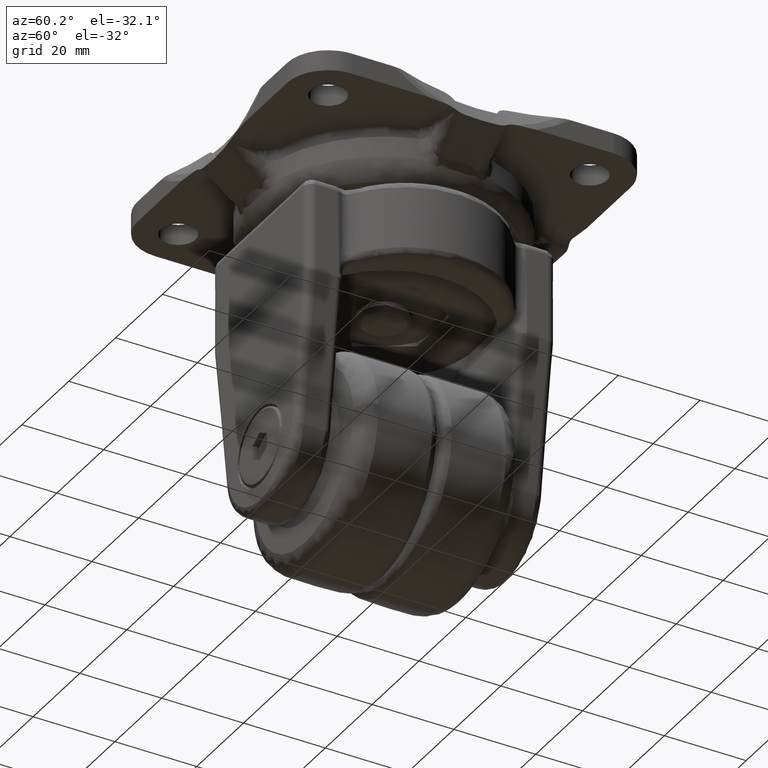
[diagram: clean part render]
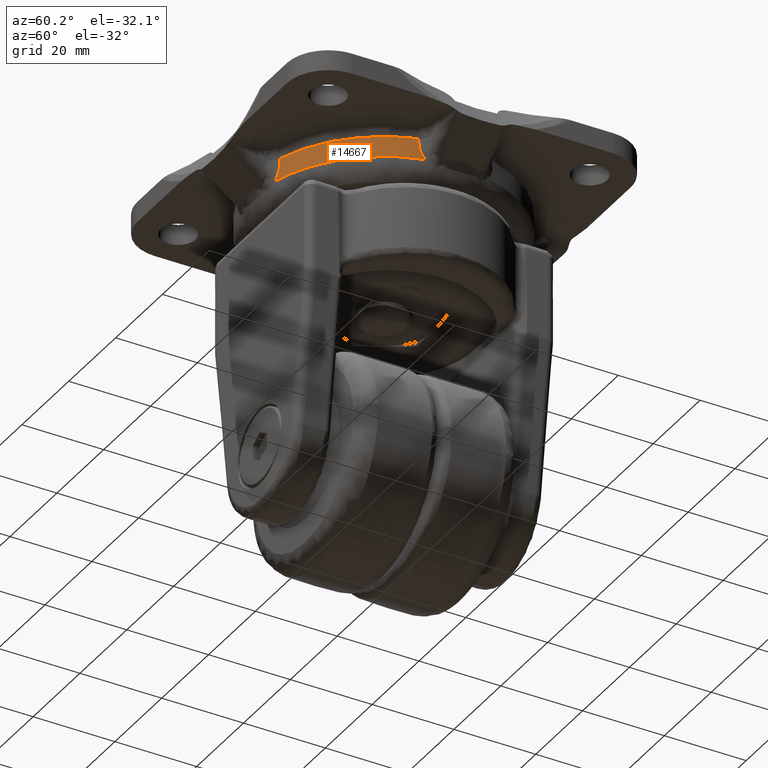
[diagram: same view with one face highlighted and labeled with its STEP entity id]
A machine part, auxiliary view. The second image highlights one B-rep face of the part: STEP entity #14667.
In plain terms, the highlighted face is a freeform B-spline surface patch.
Its self-contained STEP definition (entity closure, byte-faithful):
#10632=CARTESIAN_POINT('',(30.687658817354698,-9.070148637681271,9.256481204240949));
#10633=VERTEX_POINT('',#10632);
#10647=CARTESIAN_POINT('',(31.060403444513700,-7.697489062287860,5.0));
#10648=VERTEX_POINT('',#10647);
#10649=CARTESIAN_POINT('',(31.060403444513700,-7.697489062287860,5.0));
#10650=CARTESIAN_POINT('',(31.000406136973609,-7.939586266025339,5.293567635503227));
#10651=CARTESIAN_POINT('',(30.946776489713180,-8.144282849017049,5.609213905743681));
#10652=CARTESIAN_POINT('',(30.876683028272961,-8.404672791300392,6.110583914706492));
#10653=CARTESIAN_POINT('',(30.855047375707041,-8.483604657649906,6.282408155570114));
#10654=CARTESIAN_POINT('',(30.825316449591440,-8.590764804058935,6.546899046487170));
#10655=CARTESIAN_POINT('',(30.815840130363132,-8.624679277103931,6.636398168844538));
#10656=CARTESIAN_POINT('',(30.797932206053439,-8.688409946839604,6.816460466965587));
#10657=CARTESIAN_POINT('',(30.789502207771729,-8.718221864623777,6.906973223351667));
#10658=CARTESIAN_POINT('',(30.749926161899211,-8.857508677313778,7.361834143913178));
#10659=CARTESIAN_POINT('',(30.726475606352238,-8.937940182530063,7.733011989528642));
#10660=CARTESIAN_POINT('',(30.706990455736982,-9.004494961943639,8.205027596878422));
#10661=CARTESIAN_POINT('',(30.703586378603539,-9.016090627181885,8.299836490323672));
#10662=CARTESIAN_POINT('',(30.697759047880471,-9.035911472795590,8.490252369615076));
#10663=CARTESIAN_POINT('',(30.695335416615240,-9.044137888715483,8.585925113646921));
#10664=CARTESIAN_POINT('',(30.689550119409770,-9.063757467115368,8.872908725708140));
#10665=CARTESIAN_POINT('',(30.687658817354709,-9.070148637681262,9.064544949650770));
#10666=CARTESIAN_POINT('',(30.687658817354698,-9.070148637681260,9.256481204240949));
#10667=B_SPLINE_CURVE_WITH_KNOTS('',3,(#10649,#10650,#10651,#10652,#10653,#10654,#10655,#10656,#10657,#10658,#10659,#10660,#10661,#10662,#10663,#10664,#10665,#10666),.UNSPECIFIED.,.F.,.U.,(4,2,2,2,2,2,2,2,4),(0.0,0.250000000000000,0.375000000000000,0.437500000000000,0.500000000000000,0.750000000000000,0.812500000000000,0.875000000000000,1.0),.UNSPECIFIED.);
#10668=EDGE_CURVE('',#10648,#10633,#10667,.T.);
#10723=CARTESIAN_POINT('',(30.687658817354698,-9.070148637681271,10.0));
#10724=VERTEX_POINT('',#10723);
#10738=CARTESIAN_POINT('',(30.687658817354698,-9.070148637681271,9.256481204240949));
#10739=CARTESIAN_POINT('',(30.687658817354698,-9.070148637681271,10.0));
#10740=QUASI_UNIFORM_CURVE('',1,(#10738,#10739),.UNSPECIFIED.,.F.,.U.);
#10741=EDGE_CURVE('',#10633,#10724,#10740,.T.);
#14540=CARTESIAN_POINT('',(9.070148637681260,-30.687658817354698,10.0));
#14541=VERTEX_POINT('',#14540);
#14542=CARTESIAN_POINT('',(30.687658817354720,-9.070148637681267,10.0));
#14543=CARTESIAN_POINT('',(25.755947461592068,-25.755947461592058,9.999999999999998));
#14544=CARTESIAN_POINT('',(9.070148637681276,-30.687658817354720,10.0));
#14552=(BOUNDED_CURVE()B_SPLINE_CURVE(2,(#14542,#14543,#14544),.UNSPECIFIED.,.F.,.U.)CURVE()GEOMETRIC_REPRESENTATION_ITEM()QUASI_UNIFORM_CURVE()RATIONAL_B_SPLINE_CURVE((1.0,0.878531726767657,1.0))REPRESENTATION_ITEM(''));
#14553=EDGE_CURVE('',#10724,#14541,#14552,.T.);
#14609=CARTESIAN_POINT('',(6.424208000140696,-31.348517533863191,10.125000000000000));
#14610=CARTESIAN_POINT('',(6.424208000140696,-31.348517533863191,4.871874999999999));
#14611=CARTESIAN_POINT('',(27.350583960075816,-27.060104478587210,10.125000000000000));
#14612=CARTESIAN_POINT('',(27.350583960075816,-27.060104478587210,4.871875000000001));
#14613=CARTESIAN_POINT('',(31.415321854807196,-6.089133990878572,10.125000000000000));
#14614=CARTESIAN_POINT('',(31.415321854807196,-6.089133990878572,4.871874999999999));
#14622=(BOUNDED_SURFACE()B_SPLINE_SURFACE(1,2,((#14609,#14611,#14613),(#14610,#14612,#14614)),.UNSPECIFIED.,.F.,.F.,.U.)B_SPLINE_SURFACE_WITH_KNOTS((2,2),(3,3),(0.0,5.253125000000001),(0.0,38.797312293222433),.UNSPECIFIED.)GEOMETRIC_REPRESENTATION_ITEM()RATIONAL_B_SPLINE_SURFACE(((1.0,0.828310632674580,0.991830227066049),(1.0,0.828310632674580,0.991830227066049)))REPRESENTATION_ITEM('')SURFACE());
#14623=CARTESIAN_POINT('',(7.697489062287860,-31.060403444513700,5.0));
#14624=VERTEX_POINT('',#14623);
#14625=CARTESIAN_POINT('',(31.060403444513700,-7.697489062287859,5.0));
#14626=CARTESIAN_POINT('',(26.420425202951897,-26.420425202951883,5.0));
#14627=CARTESIAN_POINT('',(7.697489062287868,-31.060403444513700,5.0));
#14635=(BOUNDED_CURVE()B_SPLINE_CURVE(2,(#14625,#14626,#14627),.UNSPECIFIED.,.F.,.U.)CURVE()GEOMETRIC_REPRESENTATION_ITEM()QUASI_UNIFORM_CURVE()RATIONAL_B_SPLINE_CURVE((1.0,0.856436519251833,1.0))REPRESENTATION_ITEM(''));
#14636=EDGE_CURVE('',#10648,#14624,#14635,.T.);
#14637=ORIENTED_EDGE('',*,*,#14636,.F.);
#14638=ORIENTED_EDGE('',*,*,#10668,.T.);
#14639=ORIENTED_EDGE('',*,*,#10741,.T.);
#14640=ORIENTED_EDGE('',*,*,#14553,.T.);
#14641=CARTESIAN_POINT('',(9.070148637681260,-30.687658817354698,9.256481204240959));
#14642=VERTEX_POINT('',#14641);
#14643=CARTESIAN_POINT('',(9.070148637681260,-30.687658817354698,10.0));
#14644=CARTESIAN_POINT('',(9.070148637681260,-30.687658817354698,9.256481204240959));
#14645=QUASI_UNIFORM_CURVE('',1,(#14643,#14644),.UNSPECIFIED.,.F.,.U.);
#14646=EDGE_CURVE('',#14541,#14642,#14645,.T.);
#14647=ORIENTED_EDGE('',*,*,#14646,.T.);
#14648=CARTESIAN_POINT('',(9.070148637681260,-30.687658817354698,9.256481204240959));
#14649=CARTESIAN_POINT('',(9.070148637681264,-30.687658817354709,8.872579002902187));
#14650=CARTESIAN_POINT('',(9.044731644665388,-30.695208768835130,8.492617399678613));
#14651=CARTESIAN_POINT('',(8.939392923793227,-30.726051911048060,7.741125995853313));
#14652=CARTESIAN_POINT('',(8.859538562046456,-30.749343315464241,7.369486652672975));
#14653=CARTESIAN_POINT('',(8.635697406437803,-30.812956173809692,6.636468184385027));
#14654=CARTESIAN_POINT('',(8.494663344407041,-30.852439041883891,6.284861197375649));
#14655=CARTESIAN_POINT('',(8.234353537619908,-30.922540271773929,5.782153114122895));
#14656=CARTESIAN_POINT('',(8.139407746092783,-30.947723274610858,5.618724826198543));
#14657=CARTESIAN_POINT('',(7.983472377707530,-30.988176009232021,5.380386766464681));
#14658=CARTESIAN_POINT('',(7.929135390322482,-31.002132053346639,5.301950274631399));
#14659=CARTESIAN_POINT('',(7.816435560835466,-31.030738228642178,5.148503995434462));
#14660=CARTESIAN_POINT('',(7.758028572943458,-31.045400348306650,5.073410352219329));
#14661=CARTESIAN_POINT('',(7.697489062287870,-31.060403444513700,5.0));
#14662=B_SPLINE_CURVE_WITH_KNOTS('',3,(#14648,#14649,#14650,#14651,#14652,#14653,#14654,#14655,#14656,#14657,#14658,#14659,#14660,#14661),.UNSPECIFIED.,.F.,.U.,(4,2,2,2,2,2,4),(0.0,0.250000000000000,0.500000000000001,0.750000000000001,0.875000000000001,0.937500000000001,1.0),.UNSPECIFIED.);
#14663=EDGE_CURVE('',#14642,#14624,#14662,.T.);
#14664=ORIENTED_EDGE('',*,*,#14663,.T.);
#14665=EDGE_LOOP('',(#14637,#14638,#14639,#14640,#14647,#14664));
#14666=FACE_OUTER_BOUND('',#14665,.T.);
#14667=ADVANCED_FACE('',(#14666),#14622,.T.);